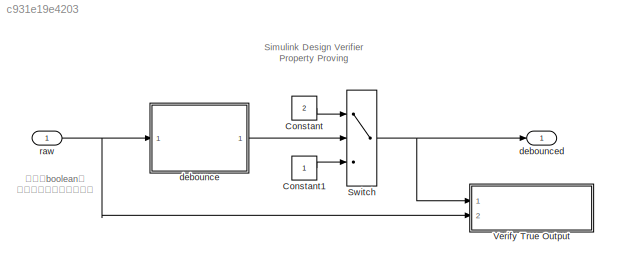
MODEL slx_c931e19e4203
KIND model
CONFIG AbsTol = auto
CONFIG FixedStep = auto
CONFIG MaxStep = auto
CONFIG MinStep = auto
CONFIG RelTol = 1e-3
CONFIG SampleTimeConstraint = Unconstrained
CONFIG Solver = FixedStepDiscrete
CONFIG SolverMode = SingleTasking
CONFIG SolverName = FixedStepDiscrete
CONFIG StartTime = 0.0
CONFIG StopTime = 10.0
BLOCK [Constant] Constant
  OutDataTypeStr = uint8
  Value = 2
BLOCK [Constant] Constant1
  OutDataTypeStr = uint8
BLOCK [Switch] Switch
  Criteria = u2 ~= 0
  InputSameDT = off
  SaturateOnIntegerOverflow = off
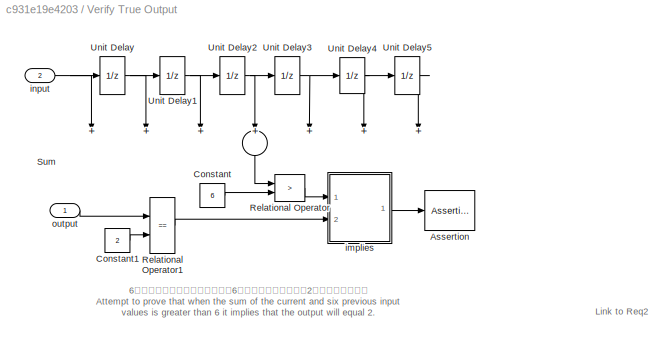
BLOCK [SubSystem] Verify True Output
  CopyFcn = sldvsubsys('copy');
  DisableCoverage = on
  LoadFcn = sldvsubsys('check')
  Ports = [2]
  PreSaveFcn = set_param(gcb,'SimViewingDevice','on');\nsldvsubsys('check');
  RequestExecContextInheritance = off
  SimViewingDevice = on
  Tag = VerificationSubsystem
  TreatAsAtomicUnit = on
  Variant = off
BLOCK [Assertion] Verify True Output/Assertion
BLOCK [Constant] Verify True Output/Constant
  OutDataTypeStr = uint8
  Value = 6
BLOCK [Constant] Verify True Output/Constant1
  OutDataTypeStr = uint8
  Value = 2
BLOCK [RelationalOperator] Verify True Output/Relational Operator
  InputSameDT = off
  Operator = >
  OutDataTypeStr = boolean
  Ports = [2, 1]
BLOCK [RelationalOperator] Verify True Output/Relational Operator1
  InputSameDT = off
  Operator = ==
  OutDataTypeStr = boolean
  Ports = [2, 1]
BLOCK [Sum] Verify True Output/Sum
  InputSameDT = off
  Inputs = +++++++
  OutDataTypeStr = Inherit: Inherit via internal rule
  Ports = [7, 1]
  SaturateOnIntegerOverflow = off
BLOCK [UnitDelay] Verify True Output/Unit Delay
  SampleTime = -1
BLOCK [UnitDelay] Verify True Output/Unit Delay1
  SampleTime = -1
BLOCK [UnitDelay] Verify True Output/Unit Delay2
  SampleTime = -1
BLOCK [UnitDelay] Verify True Output/Unit Delay3
  SampleTime = -1
BLOCK [UnitDelay] Verify True Output/Unit Delay4
  SampleTime = -1
BLOCK [UnitDelay] Verify True Output/Unit Delay5
  SampleTime = -1
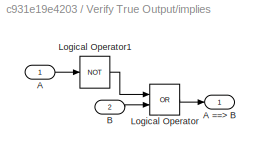
BLOCK [SubSystem] Verify True Output/implies
  Ports = [2, 1]
  RequestExecContextInheritance = off
  Variant = off
BLOCK [Inport] Verify True Output/implies/A
  IconDisplay = Port number
BLOCK [Outport] Verify True Output/implies/A ==> B
  IconDisplay = Port number
BLOCK [Inport] Verify True Output/implies/B
  IconDisplay = Port number
  Port = 2
BLOCK [Logic] Verify True Output/implies/Logical Operator
  AllPortsSameDT = off
  Operator = OR
  OutDataTypeStr = boolean
  Ports = [2, 1]
BLOCK [Logic] Verify True Output/implies/Logical Operator1
  AllPortsSameDT = off
  Operator = NOT
  OutDataTypeStr = boolean
  Ports = [1, 1]
BLOCK [Inport] Verify True Output/input
  IconDisplay = Port number
  Port = 2
BLOCK [Inport] Verify True Output/output
  IconDisplay = Port number
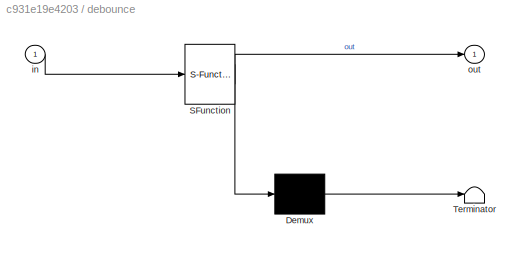
BLOCK [SubSystem] debounce
  ErrorFcn = Stateflow.Translate.translate
  PermitHierarchicalResolution = ExplicitOnly
  Ports = [1, 1]
  RequestExecContextInheritance = off
  SFBlockType = Chart
  TreatAsAtomicUnit = on
  Variant = off
BLOCK [Demux] debounce/ Demux 
  Outputs = 1
  Ports = [1, 1]
BLOCK [S-Function] debounce/ SFunction 
  EnableBusSupport = on
  FunctionName = sf_sfun
  PortCounts = [1 2]
  Ports = [1, 2]
  SFunctionDeploymentMode = off
  Tag = Stateflow S-Function sldv_property1 1
BLOCK [Terminator] debounce/ Terminator 
BLOCK [Inport] debounce/in
  IconDisplay = Port number
BLOCK [Outport] debounce/out
  IconDisplay = Port number
BLOCK [Outport] debounced
  IconDisplay = Port number
  OutDataTypeStr = uint8
BLOCK [Inport] raw
  IconDisplay = Port number
  Interpolate = off
  OutDataTypeStr = uint8
ANNOTATION (root): Simulink Design Verifier Property Proving
ANNOTATION (root): 入力をbooleanに 変更すると証明されます
ANNOTATION Verify True Output: 6サンプル前のデータの積算値が6より大きければ出力は2になることを証明 Attempt to prove that when the sum of the current and six previous input values is greater than 6 it implies that the output will equal 2.
ANNOTATION Verify True Output: Link to Req2
LINE Constant1:1 -> Switch:3
LINE Constant:1 -> Switch:1
NET Switch:1 -> Verify True Output:1, debounced:1
LINE Verify True Output/Constant1:1 -> Verify True Output/Relational Operator1:2
LINE Verify True Output/Constant:1 -> Verify True Output/Relational Operator:2
LINE Verify True Output/Relational Operator1:1 -> Verify True Output/implies:2
LINE Verify True Output/Relational Operator:1 -> Verify True Output/implies:1
LINE Verify True Output/Sum:1 -> Verify True Output/Relational Operator:1
NET Verify True Output/Unit Delay1:1 -> Verify True Output/Sum:3, Verify True Output/Unit Delay2:1
NET Verify True Output/Unit Delay2:1 -> Verify True Output/Sum:4, Verify True Output/Unit Delay3:1
NET Verify True Output/Unit Delay3:1 -> Verify True Output/Sum:5, Verify True Output/Unit Delay4:1
NET Verify True Output/Unit Delay4:1 -> Verify True Output/Sum:6, Verify True Output/Unit Delay5:1
LINE Verify True Output/Unit Delay5:1 -> Verify True Output/Sum:7
NET Verify True Output/Unit Delay:1 -> Verify True Output/Sum:2, Verify True Output/Unit Delay1:1
LINE Verify True Output/implies/A:1 -> Verify True Output/implies/Logical Operator1:1
LINE Verify True Output/implies/B:1 -> Verify True Output/implies/Logical Operator:2
LINE Verify True Output/implies/Logical Operator1:1 -> Verify True Output/implies/Logical Operator:1
LINE Verify True Output/implies/Logical Operator:1 -> Verify True Output/implies/A ==> B:1
LINE Verify True Output/implies:1 -> Verify True Output/Assertion:1
NET Verify True Output/input:1 -> Verify True Output/Sum:1, Verify True Output/Unit Delay:1
LINE Verify True Output/output:1 -> Verify True Output/Relational Operator1:1
LINE debounce:1 -> Switch:2
NET raw:1 -> Verify True Output:2, debounce:1
note: NET lines group one-source signal fan-out (src -> all destinations, sorted); 1:1 wires keep LINE
CHART debounce states=2 transitions=3
  STATE_LABEL 'Off\nout = 0;'
  STATE_LABEL 'On\nout = 1;'
